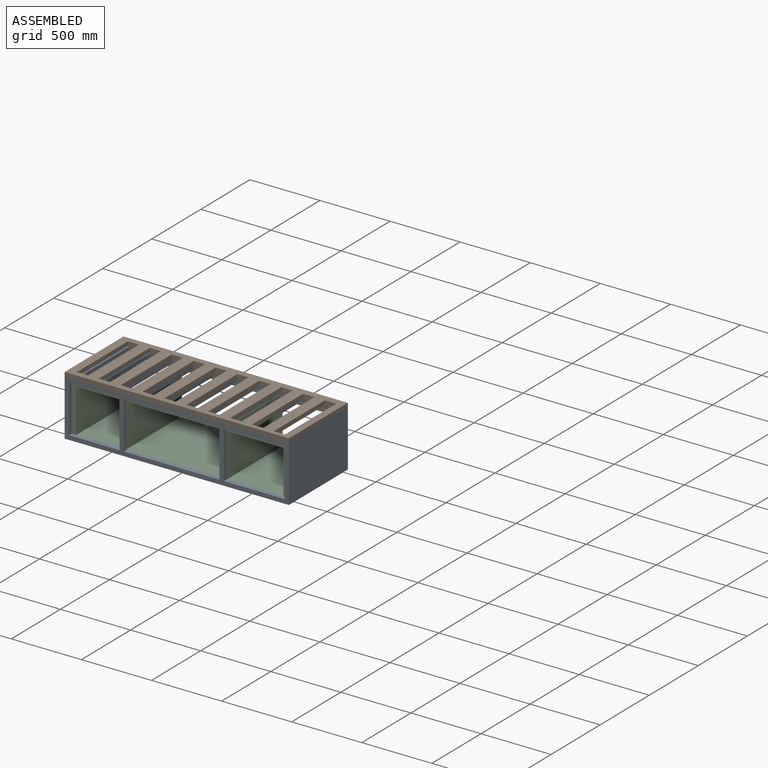
[diagram: assembled view]
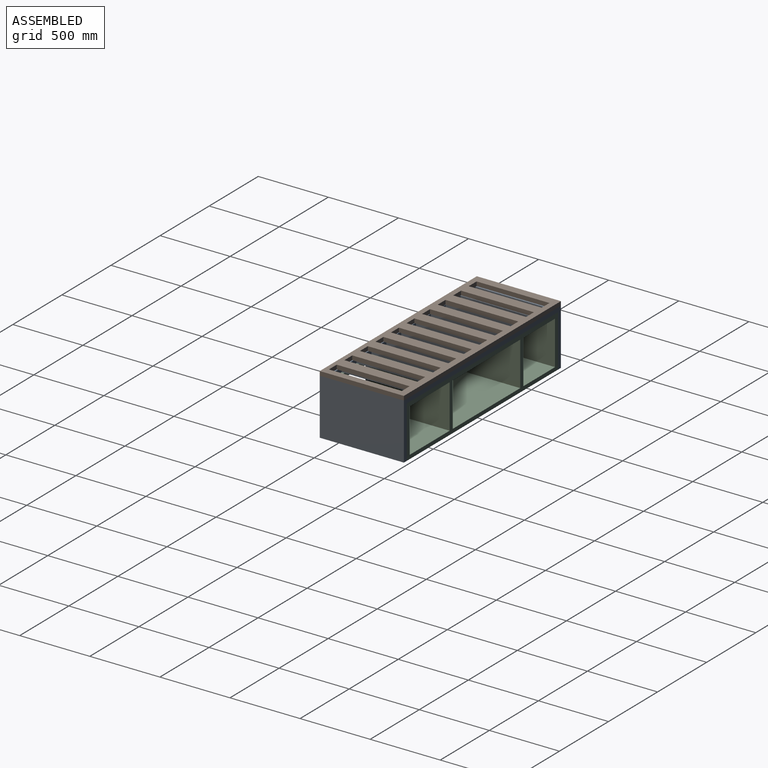
[diagram: assembled view, second angle]
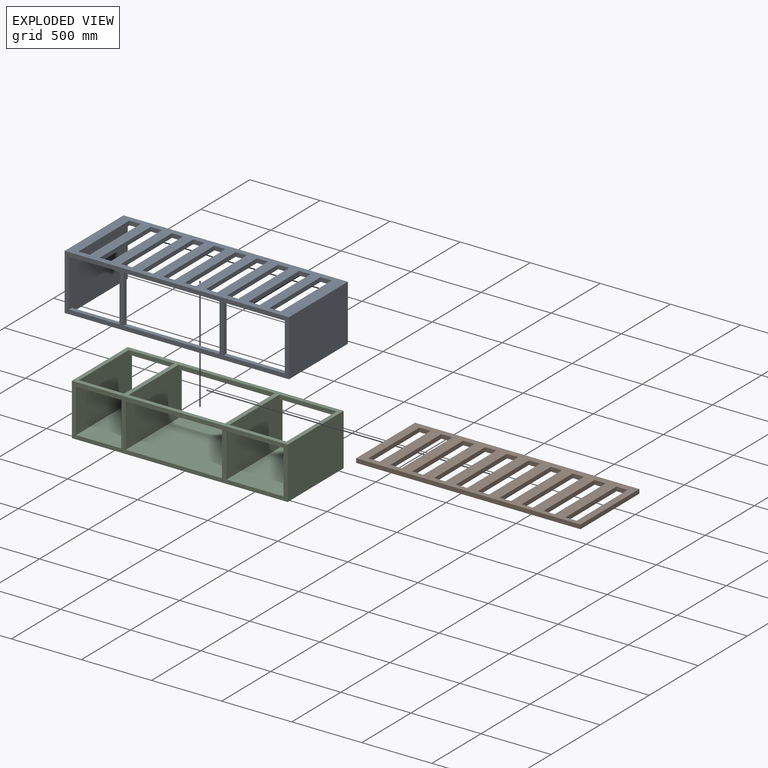
[diagram: exploded view]
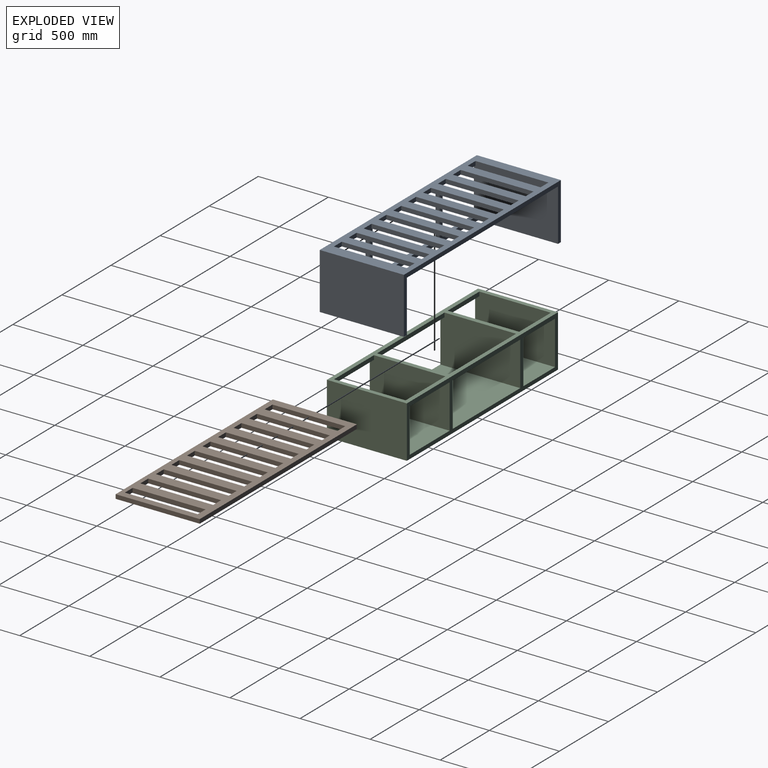
[diagram: exploded view, second angle]
ASSEMBLY  parts=3 mates=2
PART A: 57 faces, bbox 1600x600x400 mm
  f0: plane 435.79x30mm, normal (0,0,1), area 13073.8mm2, adj f3,f9,f12,f16
  f1: plane 1540x600mm, normal (0,0,-1), area 506200mm2, adj f3,f8,f9,f10,f12,f13,f14,f15
  f2: plane 683.01x30mm, normal (0,0,1), area 20490.2mm2, adj f9,f12,f14,f15
  f3: plane 600x370mm, normal (-1,0,0), area 221100mm2, adj f0,f1,f7,f9,f10,f12
  f4: plane 600x400mm, normal (1,0,0), area 240000mm2, adj f5,f7,f9,f10
  f5: plane 1600x600mm, normal (0,0,1), area 544000mm2, adj f4,f6,f9,f10,f17,f18,f19,f20
  f6: plane 600x400mm, normal (-1,0,0), area 240000mm2, adj f5,f7,f9,f10
  f7: plane 1600x600mm, normal (0,0,-1), area 82200mm2, adj f3,f4,f6,f8,f9,f10,f12
  f8: plane 600x370mm, normal (1,0,0), area 221100mm2, adj f1,f7,f9,f10,f11,f12
  f9: plane 1600x400mm, normal (0,-1,0), area 136800mm2, adj f0,f1,f2,f3,f4,f5,f6,f7
  f10: plane 1600x400mm, normal (0,1,0), area 70200mm2, adj f1,f3,f4,f5,f6,f7,f8
  f11: plane 361.2x30mm, normal (0,0,1), area 10835.9mm2, adj f8,f9,f12,f13
  f12: plane 1540x370mm, normal (0,1,0), area 66600mm2, adj f0,f1,f2,f3,f7,f8,f11,f13
  f13: plane 340x30mm, normal (-1,0,0), area 10200mm2, adj f1,f9,f11,f12
  f14: plane 340x30mm, normal (1,0,0), area 10200mm2, adj f1,f2,f9,f12
  f15: plane 340x30mm, normal (-1,0,0), area 10200mm2, adj f1,f2,f9,f12
  f16: plane 340x30mm, normal (1,0,0), area 10200mm2, adj f0,f1,f9,f12
  f17: plane 520x30mm, normal (1,0,0), area 15600mm2, adj f1,f5,f18,f19
  f18: plane 80x30mm, normal (0,-1,0), area 2400mm2, adj f1,f5,f17,f20
  f19: plane 80x30mm, normal (0,1,0), area 2400mm2, adj f1,f5,f17,f20
  f20: plane 520x30mm, normal (-1,0,0), area 15600mm2, adj f1,f5,f18,f19
  f21: plane 520x30mm, normal (1,0,0), area 15600mm2, adj f1,f5,f22,f23
  f22: plane 80x30mm, normal (0,-1,0), area 2400mm2, adj f1,f5,f21,f24
  f23: plane 80x30mm, normal (0,1,0), area 2400mm2, adj f1,f5,f21,f24
  f24: plane 520x30mm, normal (-1,0,0), area 15600mm2, adj f1,f5,f22,f23
  f25: plane 520x30mm, normal (1,0,0), area 15600mm2, adj f1,f5,f26,f27
  f26: plane 80x30mm, normal (0,-1,0), area 2400mm2, adj f1,f5,f25,f28
  f27: plane 80x30mm, normal (0,1,0), area 2400mm2, adj f1,f5,f25,f28
  f28: plane 520x30mm, normal (-1,0,0), area 15600mm2, adj f1,f5,f26,f27
  f29: plane 520x30mm, normal (1,0,0), area 15600mm2, adj f1,f5,f30,f31
  f30: plane 80x30mm, normal (0,-1,0), area 2400mm2, adj f1,f5,f29,f32
  f31: plane 80x30mm, normal (0,1,0), area 2400mm2, adj f1,f5,f29,f32
  f32: plane 520x30mm, normal (-1,0,0), area 15600mm2, adj f1,f5,f30,f31
  f33: plane 520x30mm, normal (1,0,0), area 15600mm2, adj f1,f5,f34,f35
  f34: plane 80x30mm, normal (0,-1,0), area 2400mm2, adj f1,f5,f33,f36
  f35: plane 80x30mm, normal (0,1,0), area 2400mm2, adj f1,f5,f33,f36
  f36: plane 520x30mm, normal (-1,0,0), area 15600mm2, adj f1,f5,f34,f35
  f37: plane 520x30mm, normal (1,0,0), area 15600mm2, adj f1,f5,f38,f39
  f38: plane 80x30mm, normal (0,-1,0), area 2400mm2, adj f1,f5,f37,f40
  f39: plane 80x30mm, normal (0,1,0), area 2400mm2, adj f1,f5,f37,f40
  f40: plane 520x30mm, normal (-1,0,0), area 15600mm2, adj f1,f5,f38,f39
  f41: plane 520x30mm, normal (1,0,0), area 15600mm2, adj f1,f5,f42,f43
  f42: plane 80x30mm, normal (0,-1,0), area 2400mm2, adj f1,f5,f41,f44
  f43: plane 80x30mm, normal (0,1,0), area 2400mm2, adj f1,f5,f41,f44
  f44: plane 520x30mm, normal (-1,0,0), area 15600mm2, adj f1,f5,f42,f43
  f45: plane 520x30mm, normal (1,0,0), area 15600mm2, adj f1,f5,f46,f47
  f46: plane 80x30mm, normal (0,-1,0), area 2400mm2, adj f1,f5,f45,f48
  f47: plane 80x30mm, normal (0,1,0), area 2400mm2, adj f1,f5,f45,f48
  f48: plane 520x30mm, normal (-1,0,0), area 15600mm2, adj f1,f5,f46,f47
  f49: plane 520x30mm, normal (1,0,0), area 15600mm2, adj f1,f5,f50,f51
  f50: plane 80x30mm, normal (0,-1,0), area 2400mm2, adj f1,f5,f49,f52
  f51: plane 80x30mm, normal (0,1,0), area 2400mm2, adj f1,f5,f49,f52
  f52: plane 520x30mm, normal (-1,0,0), area 15600mm2, adj f1,f5,f50,f51
  f53: plane 520x30mm, normal (1,0,0), area 15600mm2, adj f1,f5,f54,f55
  f54: plane 80x30mm, normal (0,-1,0), area 2400mm2, adj f1,f5,f53,f56
  f55: plane 80x30mm, normal (0,1,0), area 2400mm2, adj f1,f5,f53,f56
  f56: plane 520x30mm, normal (-1,0,0), area 15600mm2, adj f1,f5,f54,f55
PART B: 46 faces, bbox 1600x600x30 mm
  f0: plane 1600x600mm, normal (0,0,-1), area 544000mm2, adj f2,f3,f4,f5,f6,f7,f8,f9
  f1: plane 1600x600mm, normal (0,0,1), area 544000mm2, adj f2,f3,f4,f5,f6,f7,f8,f9
  f2: plane 600x30mm, normal (1,0,0), area 18000mm2, adj f0,f1,f4,f5
  f3: plane 600x30mm, normal (-1,0,0), area 18000mm2, adj f0,f1,f4,f5
  f4: plane 1600x30mm, normal (0,1,0), area 48000mm2, adj f0,f1,f2,f3
  f5: plane 1600x30mm, normal (0,-1,0), area 48000mm2, adj f0,f1,f2,f3
  f6: plane 80x30mm, normal (0,-1,0), area 2400mm2, adj f0,f1,f7,f9
  f7: plane 520x30mm, normal (1,0,0), area 15600mm2, adj f0,f1,f6,f8
  f8: plane 80x30mm, normal (0,1,0), area 2400mm2, adj f0,f1,f7,f9
  f9: plane 520x30mm, normal (-1,0,0), area 15600mm2, adj f0,f1,f6,f8
  f10: plane 80x30mm, normal (0,-1,0), area 2400mm2, adj f0,f1,f11,f13
  f11: plane 520x30mm, normal (1,0,0), area 15600mm2, adj f0,f1,f10,f12
  f12: plane 80x30mm, normal (0,1,0), area 2400mm2, adj f0,f1,f11,f13
  f13: plane 520x30mm, normal (-1,0,0), area 15600mm2, adj f0,f1,f10,f12
  f14: plane 80x30mm, normal (0,-1,0), area 2400mm2, adj f0,f1,f15,f17
  f15: plane 520x30mm, normal (1,0,0), area 15600mm2, adj f0,f1,f14,f16
  f16: plane 80x30mm, normal (0,1,0), area 2400mm2, adj f0,f1,f15,f17
  f17: plane 520x30mm, normal (-1,0,0), area 15600mm2, adj f0,f1,f14,f16
  f18: plane 80x30mm, normal (0,-1,0), area 2400mm2, adj f0,f1,f19,f21
  f19: plane 520x30mm, normal (1,0,0), area 15600mm2, adj f0,f1,f18,f20
  f20: plane 80x30mm, normal (0,1,0), area 2400mm2, adj f0,f1,f19,f21
  f21: plane 520x30mm, normal (-1,0,0), area 15600mm2, adj f0,f1,f18,f20
  f22: plane 80x30mm, normal (0,-1,0), area 2400mm2, adj f0,f1,f23,f25
  f23: plane 520x30mm, normal (1,0,0), area 15600mm2, adj f0,f1,f22,f24
  f24: plane 80x30mm, normal (0,1,0), area 2400mm2, adj f0,f1,f23,f25
  f25: plane 520x30mm, normal (-1,0,0), area 15600mm2, adj f0,f1,f22,f24
  f26: plane 80x30mm, normal (0,-1,0), area 2400mm2, adj f0,f1,f27,f29
  f27: plane 520x30mm, normal (1,0,0), area 15600mm2, adj f0,f1,f26,f28
  f28: plane 80x30mm, normal (0,1,0), area 2400mm2, adj f0,f1,f27,f29
  f29: plane 520x30mm, normal (-1,0,0), area 15600mm2, adj f0,f1,f26,f28
  f30: plane 80x30mm, normal (0,-1,0), area 2400mm2, adj f0,f1,f31,f33
  f31: plane 520x30mm, normal (1,0,0), area 15600mm2, adj f0,f1,f30,f32
  f32: plane 80x30mm, normal (0,1,0), area 2400mm2, adj f0,f1,f31,f33
  f33: plane 520x30mm, normal (-1,0,0), area 15600mm2, adj f0,f1,f30,f32
  f34: plane 80x30mm, normal (0,-1,0), area 2400mm2, adj f0,f1,f35,f37
  f35: plane 520x30mm, normal (1,0,0), area 15600mm2, adj f0,f1,f34,f36
  f36: plane 80x30mm, normal (0,1,0), area 2400mm2, adj f0,f1,f35,f37
  f37: plane 520x30mm, normal (-1,0,0), area 15600mm2, adj f0,f1,f34,f36
  f38: plane 80x30mm, normal (0,-1,0), area 2400mm2, adj f0,f1,f39,f41
  f39: plane 520x30mm, normal (1,0,0), area 15600mm2, adj f0,f1,f38,f40
  f40: plane 80x30mm, normal (0,1,0), area 2400mm2, adj f0,f1,f39,f41
  f41: plane 520x30mm, normal (-1,0,0), area 15600mm2, adj f0,f1,f38,f40
  f42: plane 80x30mm, normal (0,-1,0), area 2400mm2, adj f0,f1,f43,f45
  f43: plane 520x30mm, normal (1,0,0), area 15600mm2, adj f0,f1,f42,f44
  f44: plane 80x30mm, normal (0,1,0), area 2400mm2, adj f0,f1,f43,f45
  f45: plane 520x30mm, normal (-1,0,0), area 15600mm2, adj f0,f1,f42,f44
PART C: 27 faces, bbox 1540x570x370 mm
  f0: plane 570x342.5mm, normal (-1,0,0), area 193426.4mm2, adj f5,f6,f7,f11,f19,f20,f25,f26
  f1: plane 570x342.5mm, normal (1,0,0), area 193426.4mm2, adj f5,f6,f7,f11,f19,f20,f25,f26
  f2: plane 570x342.5mm, normal (1,0,0), area 193426.4mm2, adj f5,f6,f7,f12,f17,f18,f23,f24
  f3: plane 570x342.5mm, normal (-1,0,0), area 193426.4mm2, adj f5,f6,f7,f12,f17,f18,f23,f24
  f4: plane 570x342.5mm, normal (-1,0,0), area 193426.4mm2, adj f5,f6,f7,f14,f15,f16,f21,f22
  f5: plane 1540x370mm, normal (0,1,0), area 127444.1mm2, adj f0,f1,f2,f3,f4,f7,f8,f9
  f6: plane 1540x370mm, normal (0,-1,0), area 127444.1mm2, adj f0,f1,f2,f3,f4,f7,f8,f9
  f7: plane 1540x570mm, normal (0,0,1), area 155881.1mm2, adj f0,f1,f2,f3,f4,f5,f6,f8
  f8: plane 570x370mm, normal (1,0,0), area 210900mm2, adj f5,f6,f7,f10
  f9: plane 570x370mm, normal (-1,0,0), area 210900mm2, adj f5,f6,f7,f10
  f10: plane 1540x570mm, normal (0,0,-1), area 877800mm2, adj f5,f6,f8,f9
  f11: plane 570x406.28mm, normal (0,0,1), area 231579.7mm2, adj f0,f1,f5,f6
  f12: plane 686.88x570mm, normal (0,0,1), area 391523.4mm2, adj f2,f3,f5,f6
  f13: plane 570x342.5mm, normal (1,0,0), area 193426.4mm2, adj f5,f6,f7,f14,f15,f16,f21,f22
  f14: plane 570x322.36mm, normal (0,0,1), area 183747.4mm2, adj f4,f5,f6,f13
  f15: plane 322.36x30mm, normal (0,1,0), area 9670.9mm2, adj f4,f7,f13,f16
  f16: plane 322.36x30mm, normal (0,0,-1), area 9670.9mm2, adj f4,f6,f13,f15
  f17: plane 686.88x30mm, normal (0,1,0), area 20606.5mm2, adj f2,f3,f7,f18
  f18: plane 686.88x30mm, normal (0,0,-1), area 20606.5mm2, adj f2,f3,f6,f17
  f19: plane 406.28x30mm, normal (0,0,-1), area 12188.4mm2, adj f0,f1,f6,f20
  f20: plane 406.28x30mm, normal (0,1,0), area 12188.4mm2, adj f0,f1,f7,f19
  f21: plane 322.36x30mm, normal (0,-1,0), area 9670.9mm2, adj f4,f7,f13,f22
  f22: plane 322.36x30mm, normal (0,0,-1), area 9670.9mm2, adj f4,f5,f13,f21
  f23: plane 686.88x30mm, normal (0,-1,0), area 20606.5mm2, adj f2,f3,f7,f24
  f24: plane 686.88x30mm, normal (0,0,-1), area 20606.5mm2, adj f2,f3,f5,f23
  f25: plane 406.28x30mm, normal (0,0,-1), area 12188.4mm2, adj f0,f1,f5,f26
  f26: plane 406.28x30mm, normal (0,-1,0), area 12188.4mm2, adj f0,f1,f7,f25
PLACE A at identity
PLACE B rot(axis=(1,0,0),180deg) t=(0,0,800)mm
PLACE C at identity fixed
MATE slider A.f10 <-> C.f5  axis (0,1,0) through (770,0,0)mm
MATE revolute B.f2 <-> A.f4  axis (1,0,0) through (800,0,400)mm
